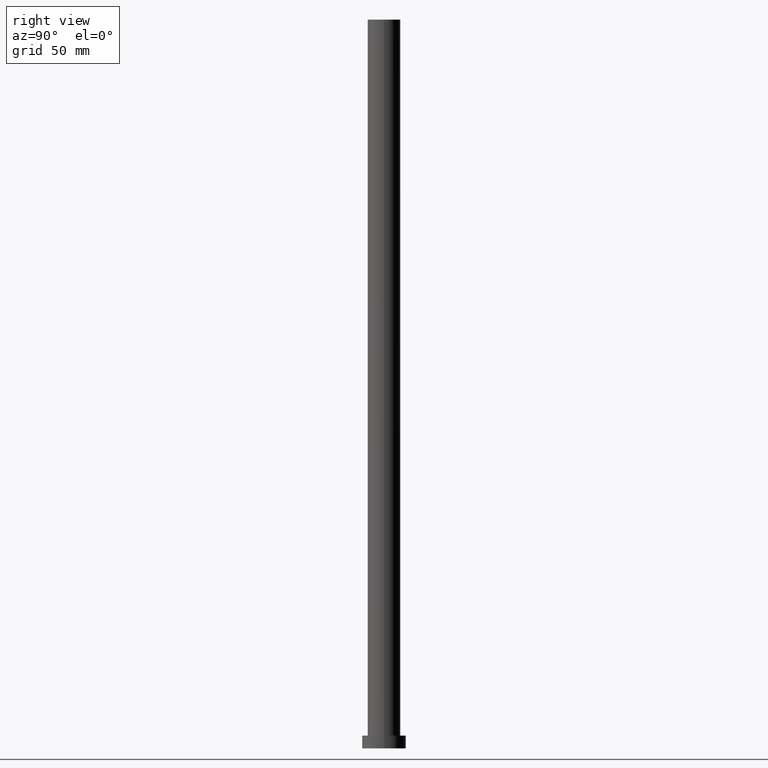
[diagram: clean part render]
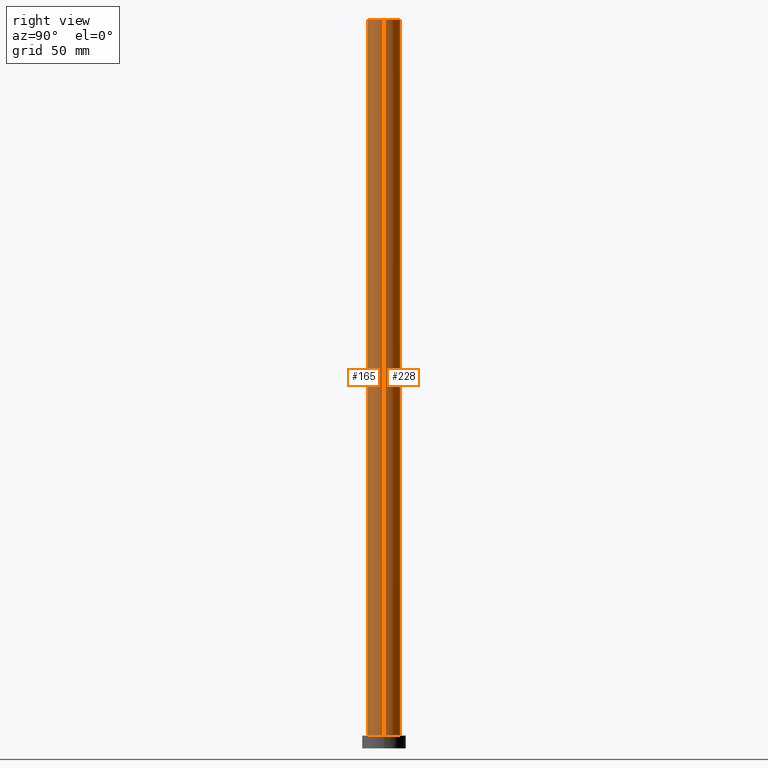
[diagram: same view with one multi-face feature highlighted, each face labeled with its STEP entity id]
A machine part, right view. The highlighted faces form ONE feature: a constant-radius fillet chain: 2 tangent blend faces with common blend radius 9 mm. The faces share edges in the B-rep.
Their STEP definitions:
[1] entity #165 (Cylinder):
#5 = LINE ( 'NONE', #236, #163 ) ;
#14 = CIRCLE ( 'NONE', #113, 9.000000000000001776 ) ;
#28 = CARTESIAN_POINT ( 'NONE',  ( 0.000000000000000000, 0.000000000000000000, 400.0000000000000000 ) ) ;
#31 = ORIENTED_EDGE ( 'NONE', *, *, #204, .T. ) ;
#35 = ORIENTED_EDGE ( 'NONE', *, *, #195, .F. ) ;
#42 = DIRECTION ( 'NONE',  ( 1.000000000000000000, 0.000000000000000000, 0.000000000000000000 ) ) ;
#45 = CARTESIAN_POINT ( 'NONE',  ( 9.000000000000001776, 1.102182119232617911E-15, 7.000000000000000000 ) ) ;
#46 = DIRECTION ( 'NONE',  ( -0.000000000000000000, -0.000000000000000000, -1.000000000000000000 ) ) ;
#65 = EDGE_CURVE ( 'NONE', #205, #170, #5, .T. ) ;
#69 = VERTEX_POINT ( 'NONE', #194 ) ;
#70 = CARTESIAN_POINT ( 'NONE',  ( -9.000000000000001776, 0.000000000000000000, 400.0000000000000000 ) ) ;
#77 = DIRECTION ( 'NONE',  ( 0.000000000000000000, 0.000000000000000000, 1.000000000000000000 ) ) ;
#80 = AXIS2_PLACEMENT_3D ( 'NONE', #144, #46, #220 ) ;
#93 = CARTESIAN_POINT ( 'NONE',  ( -9.000000000000001776, 0.000000000000000000, 400.0000000000000000 ) ) ;
#105 = FACE_OUTER_BOUND ( 'NONE', #208, .T. ) ;
#113 = AXIS2_PLACEMENT_3D ( 'NONE', #230, #156, #238 ) ;
#140 = AXIS2_PLACEMENT_3D ( 'NONE', #28, #77, #42 ) ;
#144 = CARTESIAN_POINT ( 'NONE',  ( 0.000000000000000000, 0.000000000000000000, 400.0000000000000000 ) ) ;
#156 = DIRECTION ( 'NONE',  ( 0.000000000000000000, 0.000000000000000000, 1.000000000000000000 ) ) ;
#163 = VECTOR ( 'NONE', #231, 1000.000000000000000 ) ;
#165 = ADVANCED_FACE ( 'NONE', ( #105 ), #221, .T. ) ;
#168 = ORIENTED_EDGE ( 'NONE', *, *, #65, .F. ) ;
#170 = VERTEX_POINT ( 'NONE', #45 ) ;
#171 = VECTOR ( 'NONE', #172, 1000.000000000000000 ) ;
#172 = DIRECTION ( 'NONE',  ( -0.000000000000000000, -0.000000000000000000, -1.000000000000000000 ) ) ;
#186 = ORIENTED_EDGE ( 'NONE', *, *, #241, .T. ) ;
#190 = LINE ( 'NONE', #93, #171 ) ;
#194 = CARTESIAN_POINT ( 'NONE',  ( -9.000000000000001776, 0.000000000000000000, 7.000000000000000000 ) ) ;
#195 = EDGE_CURVE ( 'NONE', #223, #205, #196, .T. ) ;
#196 = CIRCLE ( 'NONE', #140, 9.000000000000001776 ) ;
#198 = CARTESIAN_POINT ( 'NONE',  ( 9.000000000000001776, 1.102182119232617911E-15, 400.0000000000000000 ) ) ;
#204 = EDGE_CURVE ( 'NONE', #223, #69, #190, .T. ) ;
#205 = VERTEX_POINT ( 'NONE', #198 ) ;
#208 = EDGE_LOOP ( 'NONE', ( #168, #35, #31, #186 ) ) ;
#220 = DIRECTION ( 'NONE',  ( -1.000000000000000000, 0.000000000000000000, 0.000000000000000000 ) ) ;
#221 = CYLINDRICAL_SURFACE ( 'NONE', #80, 9.000000000000001776 ) ;
#223 = VERTEX_POINT ( 'NONE', #70 ) ;
#230 = CARTESIAN_POINT ( 'NONE',  ( 0.000000000000000000, 0.000000000000000000, 7.000000000000000000 ) ) ;
#231 = DIRECTION ( 'NONE',  ( -0.000000000000000000, -0.000000000000000000, -1.000000000000000000 ) ) ;
#236 = CARTESIAN_POINT ( 'NONE',  ( 9.000000000000001776, 1.102182119232617911E-15, 400.0000000000000000 ) ) ;
#238 = DIRECTION ( 'NONE',  ( 1.000000000000000000, 0.000000000000000000, 0.000000000000000000 ) ) ;
#241 = EDGE_CURVE ( 'NONE', #69, #170, #14, .T. ) ;
[2] entity #228 (Cylinder):
#4 = EDGE_CURVE ( 'NONE', #170, #69, #159, .T. ) ;
#5 = LINE ( 'NONE', #236, #163 ) ;
#11 = DIRECTION ( 'NONE',  ( 0.000000000000000000, 0.000000000000000000, 1.000000000000000000 ) ) ;
#12 = CARTESIAN_POINT ( 'NONE',  ( 0.000000000000000000, 0.000000000000000000, 7.000000000000000000 ) ) ;
#25 = AXIS2_PLACEMENT_3D ( 'NONE', #218, #97, #38 ) ;
#30 = EDGE_CURVE ( 'NONE', #205, #223, #145, .T. ) ;
#38 = DIRECTION ( 'NONE',  ( 1.000000000000000000, 0.000000000000000000, 0.000000000000000000 ) ) ;
#45 = CARTESIAN_POINT ( 'NONE',  ( 9.000000000000001776, 1.102182119232617911E-15, 7.000000000000000000 ) ) ;
#65 = EDGE_CURVE ( 'NONE', #205, #170, #5, .T. ) ;
#69 = VERTEX_POINT ( 'NONE', #194 ) ;
#70 = CARTESIAN_POINT ( 'NONE',  ( -9.000000000000001776, 0.000000000000000000, 400.0000000000000000 ) ) ;
#74 = DIRECTION ( 'NONE',  ( -0.000000000000000000, -0.000000000000000000, -1.000000000000000000 ) ) ;
#84 = ORIENTED_EDGE ( 'NONE', *, *, #204, .F. ) ;
#93 = CARTESIAN_POINT ( 'NONE',  ( -9.000000000000001776, 0.000000000000000000, 400.0000000000000000 ) ) ;
#97 = DIRECTION ( 'NONE',  ( 0.000000000000000000, 0.000000000000000000, 1.000000000000000000 ) ) ;
#115 = FACE_OUTER_BOUND ( 'NONE', #173, .T. ) ;
#125 = ORIENTED_EDGE ( 'NONE', *, *, #4, .T. ) ;
#135 = CARTESIAN_POINT ( 'NONE',  ( 0.000000000000000000, 0.000000000000000000, 400.0000000000000000 ) ) ;
#145 = CIRCLE ( 'NONE', #25, 9.000000000000001776 ) ;
#159 = CIRCLE ( 'NONE', #243, 9.000000000000001776 ) ;
#161 = AXIS2_PLACEMENT_3D ( 'NONE', #135, #74, #217 ) ;
#163 = VECTOR ( 'NONE', #231, 1000.000000000000000 ) ;
#170 = VERTEX_POINT ( 'NONE', #45 ) ;
#171 = VECTOR ( 'NONE', #172, 1000.000000000000000 ) ;
#172 = DIRECTION ( 'NONE',  ( -0.000000000000000000, -0.000000000000000000, -1.000000000000000000 ) ) ;
#173 = EDGE_LOOP ( 'NONE', ( #229, #226, #125, #84 ) ) ;
#190 = LINE ( 'NONE', #93, #171 ) ;
#194 = CARTESIAN_POINT ( 'NONE',  ( -9.000000000000001776, 0.000000000000000000, 7.000000000000000000 ) ) ;
#198 = CARTESIAN_POINT ( 'NONE',  ( 9.000000000000001776, 1.102182119232617911E-15, 400.0000000000000000 ) ) ;
#200 = DIRECTION ( 'NONE',  ( 1.000000000000000000, 0.000000000000000000, 0.000000000000000000 ) ) ;
#204 = EDGE_CURVE ( 'NONE', #223, #69, #190, .T. ) ;
#205 = VERTEX_POINT ( 'NONE', #198 ) ;
#214 = CYLINDRICAL_SURFACE ( 'NONE', #161, 9.000000000000001776 ) ;
#217 = DIRECTION ( 'NONE',  ( -1.000000000000000000, 0.000000000000000000, 0.000000000000000000 ) ) ;
#218 = CARTESIAN_POINT ( 'NONE',  ( 0.000000000000000000, 0.000000000000000000, 400.0000000000000000 ) ) ;
#223 = VERTEX_POINT ( 'NONE', #70 ) ;
#226 = ORIENTED_EDGE ( 'NONE', *, *, #65, .T. ) ;
#228 = ADVANCED_FACE ( 'NONE', ( #115 ), #214, .T. ) ;
#229 = ORIENTED_EDGE ( 'NONE', *, *, #30, .F. ) ;
#231 = DIRECTION ( 'NONE',  ( -0.000000000000000000, -0.000000000000000000, -1.000000000000000000 ) ) ;
#236 = CARTESIAN_POINT ( 'NONE',  ( 9.000000000000001776, 1.102182119232617911E-15, 400.0000000000000000 ) ) ;
#243 = AXIS2_PLACEMENT_3D ( 'NONE', #12, #11, #200 ) ;